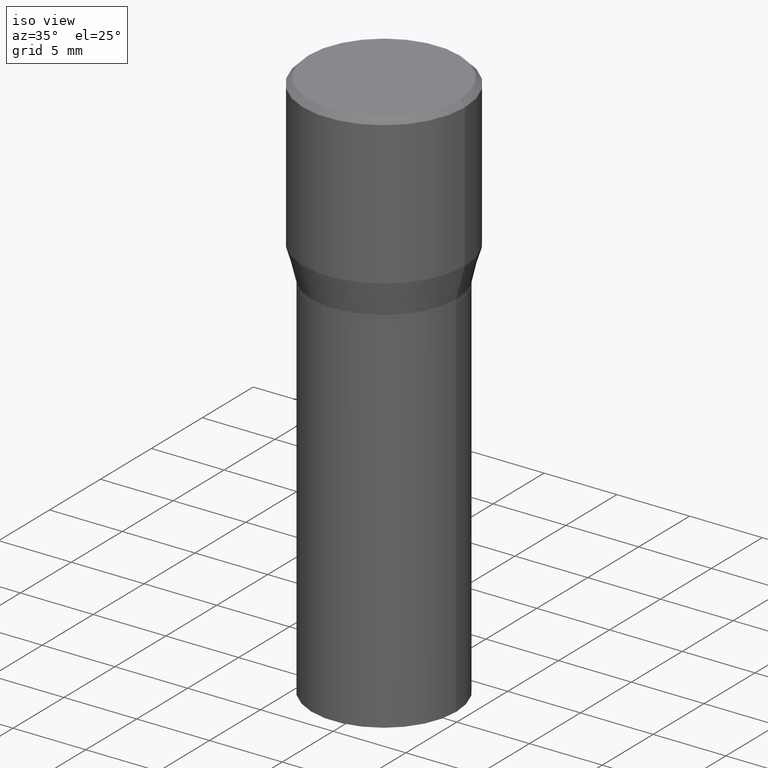
[diagram: clean part render]
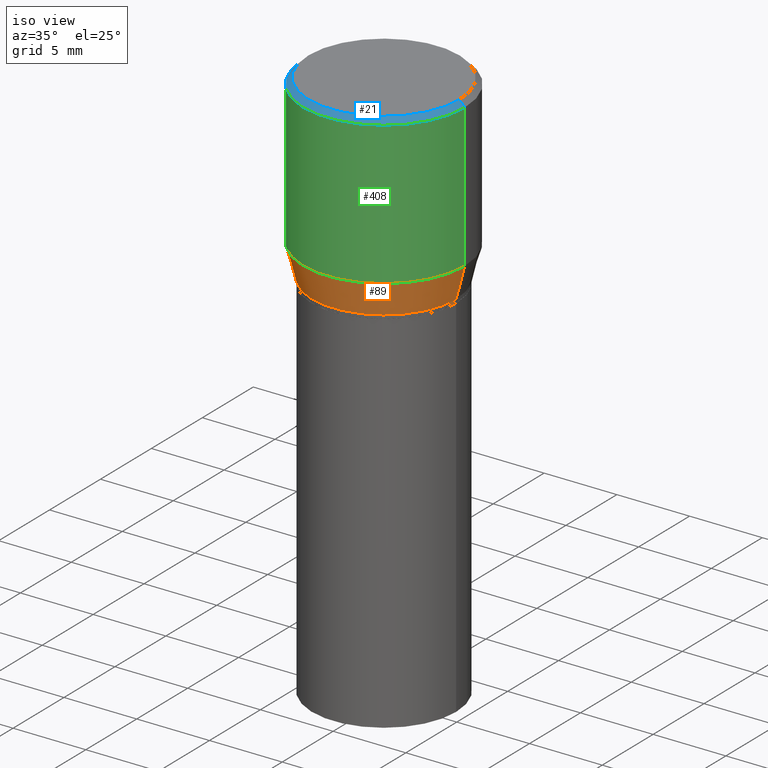
[diagram: same view with three faces highlighted in distinct colors, each labeled with its STEP entity id]
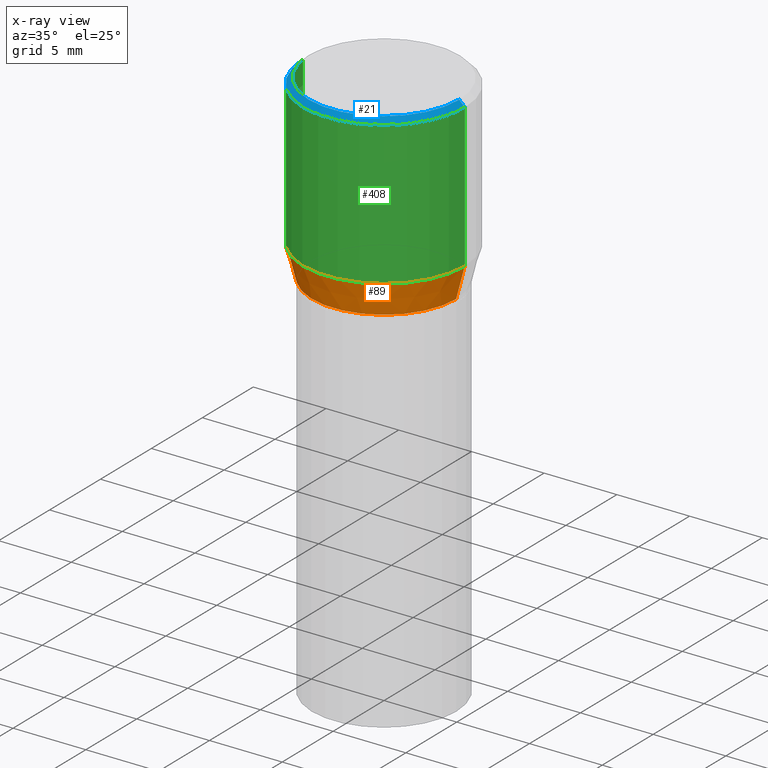
[diagram: x-ray of the same camera — body ghosted, the three highlighted faces saturated]
A machine part, iso view with three faces highlighted in distinct colors.
The next image is the same camera in x-ray (body ghosted, the three faces saturated) — at least one of them is partly hidden behind the body in this view.
Their STEP definitions:

[orange] entity #89 — the highlighted conical surface has half-angle 15 deg.
#8 = DIRECTION ( 'NONE',  ( 1.000000000000000000, -6.982962677686265922E-15, 0.000000000000000000 ) ) ;
#11 = CARTESIAN_POINT ( 'NONE',  ( -0.1952999999999999736, -3.231358930936662090E-16, -0.4900000000000001021 ) ) ;
#31 = ORIENTED_EDGE ( 'NONE', *, *, #311, .F. ) ;
#32 = VERTEX_POINT ( 'NONE', #465 ) ;
#38 = FACE_OUTER_BOUND ( 'NONE', #382, .T. ) ;
#39 = DIRECTION ( 'NONE',  ( 1.000000000000000000, -6.982962677686265922E-15, 0.000000000000000000 ) ) ;
#56 = DIRECTION ( 'NONE',  ( 1.000000000000000000, -6.982962677686266711E-15, 0.000000000000000000 ) ) ;
#64 = CIRCLE ( 'NONE', #79, 0.1952999999999999736 ) ;
#69 = AXIS2_PLACEMENT_3D ( 'NONE', #191, #404, #8 ) ;
#76 = VERTEX_POINT ( 'NONE', #367 ) ;
#79 = AXIS2_PLACEMENT_3D ( 'NONE', #251, #400, #39 ) ;
#83 = ORIENTED_EDGE ( 'NONE', *, *, #415, .F. ) ;
#89 = ADVANCED_FACE ( 'NONE', ( #38 ), #313, .T. ) ;
#110 = VECTOR ( 'NONE', #348, 39.37007874015747433 ) ;
#119 = VERTEX_POINT ( 'NONE', #383 ) ;
#165 = LINE ( 'NONE', #410, #205 ) ;
#166 = ORIENTED_EDGE ( 'NONE', *, *, #200, .T. ) ;
#173 = AXIS2_PLACEMENT_3D ( 'NONE', #334, #199, #56 ) ;
#191 = CARTESIAN_POINT ( 'NONE',  ( 1.198279715030717173E-29, -1.710825856033141537E-15, -0.4900000000000001021 ) ) ;
#199 = DIRECTION ( 'NONE',  ( -2.445468806185136597E-29, 3.491481338843145583E-15, 1.000000000000000000 ) ) ;
#200 = EDGE_CURVE ( 'NONE', #32, #119, #64, .T. ) ;
#205 = VECTOR ( 'NONE', #306, 39.37007874015747433 ) ;
#251 = CARTESIAN_POINT ( 'NONE',  ( 1.198279715030717173E-29, -1.710825856033141537E-15, -0.4900000000000001021 ) ) ;
#265 = LINE ( 'NONE', #11, #110 ) ;
#306 = DIRECTION ( 'NONE',  ( 0.2588190451025214611, 1.565188264969621573E-15, 0.9659258262890682012 ) ) ;
#311 = EDGE_CURVE ( 'NONE', #32, #76, #265, .T. ) ;
#313 = CONICAL_SURFACE ( 'NONE', #69, 0.1952999999999999736, 0.2617993877991501295 ) ;
#314 = CIRCLE ( 'NONE', #173, 0.2187500000000000000 ) ;
#334 = CARTESIAN_POINT ( 'NONE',  ( 9.842606206466859638E-30, -1.405263310189985589E-15, -0.4024834085625100810 ) ) ;
#348 = DIRECTION ( 'NONE',  ( -0.2588190451025214611, 5.211531920934551042E-15, 0.9659258262890682012 ) ) ;
#367 = CARTESIAN_POINT ( 'NONE',  ( -0.2187500000000000000, 1.490489242852337896E-16, -0.4024834085625100810 ) ) ;
#377 = EDGE_CURVE ( 'NONE', #119, #402, #165, .T. ) ;
#382 = EDGE_LOOP ( 'NONE', ( #31, #166, #434, #83 ) ) ;
#383 = CARTESIAN_POINT ( 'NONE',  ( 0.1952999999999999736, -3.074598466985269231E-15, -0.4900000000000001021 ) ) ;
#400 = DIRECTION ( 'NONE',  ( -2.445468806185136597E-29, 3.491481338843145583E-15, 1.000000000000000000 ) ) ;
#402 = VERTEX_POINT ( 'NONE', #409 ) ;
#404 = DIRECTION ( 'NONE',  ( -2.445468806185136597E-29, 3.491481338843145583E-15, 1.000000000000000000 ) ) ;
#409 = CARTESIAN_POINT ( 'NONE',  ( 0.2187500000000000000, -2.932786395933856235E-15, -0.4024834085625100810 ) ) ;
#410 = CARTESIAN_POINT ( 'NONE',  ( 0.1952999999999999736, -3.074598466985269231E-15, -0.4900000000000001021 ) ) ;
#415 = EDGE_CURVE ( 'NONE', #76, #402, #314, .T. ) ;
#434 = ORIENTED_EDGE ( 'NONE', *, *, #377, .T. ) ;
#465 = CARTESIAN_POINT ( 'NONE',  ( -0.1952999999999999736, -8.704348440421619739E-17, -0.4900000000000001021 ) ) ;

[blue] entity #21 — the highlighted conical surface has half-angle 45 deg.
#2 = DIRECTION ( 'NONE',  ( 1.000000000000000000, -6.982962677686266711E-15, 0.000000000000000000 ) ) ;
#5 = CARTESIAN_POINT ( 'NONE',  ( 3.668203209277705088E-31, -5.237222008264718399E-17, -0.01499999999999999944 ) ) ;
#18 = AXIS2_PLACEMENT_3D ( 'NONE', #5, #431, #2 ) ;
#21 = ADVANCED_FACE ( 'NONE', ( #328 ), #349, .T. ) ;
#28 = ORIENTED_EDGE ( 'NONE', *, *, #181, .T. ) ;
#70 = CIRCLE ( 'NONE', #131, 0.2037499999999999867 ) ;
#77 = DIRECTION ( 'NONE',  ( -0.7071067811865452413, 2.468850131082233000E-15, -0.7071067811865497932 ) ) ;
#82 = CARTESIAN_POINT ( 'NONE',  ( -0.2187500000000000000, 1.475150865661223567E-15, -0.01499999999999999944 ) ) ;
#88 = LINE ( 'NONE', #164, #267 ) ;
#95 = DIRECTION ( 'NONE',  ( 1.000000000000000000, -6.982962677686266711E-15, 4.875065411617369217E-29 ) ) ;
#116 = CARTESIAN_POINT ( 'NONE',  ( 3.668203209277705088E-31, -5.237222008264718399E-17, -0.01499999999999999944 ) ) ;
#131 = AXIS2_PLACEMENT_3D ( 'NONE', #376, #230, #95 ) ;
#145 = VERTEX_POINT ( 'NONE', #411 ) ;
#151 = DIRECTION ( 'NONE',  ( -1.000000000000000000, 6.982962677686266711E-15, 0.000000000000000000 ) ) ;
#157 = CARTESIAN_POINT ( 'NONE',  ( 0.2037499999999999867, -1.475466312070559275E-15, 1.060151966214670170E-16 ) ) ;
#164 = CARTESIAN_POINT ( 'NONE',  ( 0.2187500000000000000, -1.553106157095169608E-15, -0.01499999999999999944 ) ) ;
#181 = EDGE_CURVE ( 'NONE', #392, #145, #276, .T. ) ;
#207 = VERTEX_POINT ( 'NONE', #157 ) ;
#225 = EDGE_CURVE ( 'NONE', #145, #282, #338, .T. ) ;
#230 = DIRECTION ( 'NONE',  ( -2.445468806185136597E-29, 3.491481338843145583E-15, 1.000000000000000000 ) ) ;
#234 = CARTESIAN_POINT ( 'NONE',  ( -0.2037499999999999867, 1.448964755619900421E-15, 1.060151966214468518E-16 ) ) ;
#245 = ORIENTED_EDGE ( 'NONE', *, *, #397, .F. ) ;
#246 = ORIENTED_EDGE ( 'NONE', *, *, #342, .F. ) ;
#267 = VECTOR ( 'NONE', #449, 39.37007874015748143 ) ;
#276 = LINE ( 'NONE', #82, #414 ) ;
#282 = VERTEX_POINT ( 'NONE', #445 ) ;
#296 = DIRECTION ( 'NONE',  ( 2.445468806185136597E-29, -3.491481338843145583E-15, -1.000000000000000000 ) ) ;
#328 = FACE_OUTER_BOUND ( 'NONE', #359, .T. ) ;
#338 = CIRCLE ( 'NONE', #18, 0.2187500000000000000 ) ;
#342 = EDGE_CURVE ( 'NONE', #207, #282, #88, .T. ) ;
#349 = CONICAL_SURFACE ( 'NONE', #462, 0.2187500000000000000, 0.7853981633974450594 ) ;
#359 = EDGE_LOOP ( 'NONE', ( #246, #245, #28, #454 ) ) ;
#376 = CARTESIAN_POINT ( 'NONE',  ( -2.592568563193567003E-45, 3.701500806376036554E-31, 1.060151966214568974E-16 ) ) ;
#392 = VERTEX_POINT ( 'NONE', #234 ) ;
#397 = EDGE_CURVE ( 'NONE', #392, #207, #70, .T. ) ;
#411 = CARTESIAN_POINT ( 'NONE',  ( -0.2187500000000000000, 8.254944693389027239E-16, -0.01499999999999999944 ) ) ;
#414 = VECTOR ( 'NONE', #77, 39.37007874015748143 ) ;
#431 = DIRECTION ( 'NONE',  ( -2.445468806185136597E-29, 3.491481338843145583E-15, 1.000000000000000000 ) ) ;
#445 = CARTESIAN_POINT ( 'NONE',  ( 0.2187500000000000000, -1.579895305826517922E-15, -0.01499999999999999944 ) ) ;
#449 = DIRECTION ( 'NONE',  ( 0.7071067811865452413, -7.319954787623248157E-15, -0.7071067811865497932 ) ) ;
#454 = ORIENTED_EDGE ( 'NONE', *, *, #225, .T. ) ;
#462 = AXIS2_PLACEMENT_3D ( 'NONE', #116, #296, #151 ) ;

[green] entity #408 — the highlighted cylindrical surface (partial cylindrical patch) has radius 5.5562 mm, axis along (-0, 0, 1).
#2 = DIRECTION ( 'NONE',  ( 1.000000000000000000, -6.982962677686266711E-15, 0.000000000000000000 ) ) ;
#3 = VECTOR ( 'NONE', #344, 39.37007874015748143 ) ;
#5 = CARTESIAN_POINT ( 'NONE',  ( 3.668203209277705088E-31, -5.237222008264718399E-17, -0.01499999999999999944 ) ) ;
#18 = AXIS2_PLACEMENT_3D ( 'NONE', #5, #431, #2 ) ;
#30 = EDGE_CURVE ( 'NONE', #76, #145, #220, .T. ) ;
#56 = DIRECTION ( 'NONE',  ( 1.000000000000000000, -6.982962677686266711E-15, 0.000000000000000000 ) ) ;
#76 = VERTEX_POINT ( 'NONE', #367 ) ;
#92 = DIRECTION ( 'NONE',  ( 1.000000000000000000, -6.982962677686266711E-15, 4.876176775795935232E-29 ) ) ;
#139 = ORIENTED_EDGE ( 'NONE', *, *, #30, .F. ) ;
#145 = VERTEX_POINT ( 'NONE', #411 ) ;
#173 = AXIS2_PLACEMENT_3D ( 'NONE', #334, #199, #56 ) ;
#193 = CARTESIAN_POINT ( 'NONE',  ( 0.000000000000000000, 0.000000000000000000, 0.000000000000000000 ) ) ;
#197 = FACE_OUTER_BOUND ( 'NONE', #293, .T. ) ;
#199 = DIRECTION ( 'NONE',  ( -2.445468806185136597E-29, 3.491481338843145583E-15, 1.000000000000000000 ) ) ;
#216 = CARTESIAN_POINT ( 'NONE',  ( -0.2187500000000000000, 1.554312234475219157E-15, -1.076017050993260622E-29 ) ) ;
#220 = LINE ( 'NONE', #216, #419 ) ;
#225 = EDGE_CURVE ( 'NONE', #145, #282, #338, .T. ) ;
#227 = DIRECTION ( 'NONE',  ( -2.445468806185136597E-29, 3.491481338843145583E-15, 1.000000000000000000 ) ) ;
#243 = ORIENTED_EDGE ( 'NONE', *, *, #290, .T. ) ;
#282 = VERTEX_POINT ( 'NONE', #445 ) ;
#290 = EDGE_CURVE ( 'NONE', #402, #282, #310, .T. ) ;
#293 = EDGE_LOOP ( 'NONE', ( #139, #307, #243, #322 ) ) ;
#307 = ORIENTED_EDGE ( 'NONE', *, *, #415, .T. ) ;
#310 = LINE ( 'NONE', #337, #3 ) ;
#314 = CIRCLE ( 'NONE', #173, 0.2187500000000000000 ) ;
#322 = ORIENTED_EDGE ( 'NONE', *, *, #225, .F. ) ;
#334 = CARTESIAN_POINT ( 'NONE',  ( 9.842606206466859638E-30, -1.405263310189985589E-15, -0.4024834085625100810 ) ) ;
#337 = CARTESIAN_POINT ( 'NONE',  ( 0.2187500000000000000, -1.527523085743870843E-15, 1.066663669705360885E-29 ) ) ;
#338 = CIRCLE ( 'NONE', #18, 0.2187500000000000000 ) ;
#344 = DIRECTION ( 'NONE',  ( -2.445468806185136877E-29, 3.491481338843145188E-15, 1.000000000000000000 ) ) ;
#367 = CARTESIAN_POINT ( 'NONE',  ( -0.2187500000000000000, 1.490489242852337896E-16, -0.4024834085625100810 ) ) ;
#373 = AXIS2_PLACEMENT_3D ( 'NONE', #193, #227, #92 ) ;
#381 = CYLINDRICAL_SURFACE ( 'NONE', #373, 0.2187500000000000000 ) ;
#398 = DIRECTION ( 'NONE',  ( -2.445468806185136877E-29, 3.491481338843145188E-15, 1.000000000000000000 ) ) ;
#402 = VERTEX_POINT ( 'NONE', #409 ) ;
#408 = ADVANCED_FACE ( 'NONE', ( #197 ), #381, .T. ) ;
#409 = CARTESIAN_POINT ( 'NONE',  ( 0.2187500000000000000, -2.932786395933856235E-15, -0.4024834085625100810 ) ) ;
#411 = CARTESIAN_POINT ( 'NONE',  ( -0.2187500000000000000, 8.254944693389027239E-16, -0.01499999999999999944 ) ) ;
#415 = EDGE_CURVE ( 'NONE', #76, #402, #314, .T. ) ;
#419 = VECTOR ( 'NONE', #398, 39.37007874015748143 ) ;
#431 = DIRECTION ( 'NONE',  ( -2.445468806185136597E-29, 3.491481338843145583E-15, 1.000000000000000000 ) ) ;
#445 = CARTESIAN_POINT ( 'NONE',  ( 0.2187500000000000000, -1.579895305826517922E-15, -0.01499999999999999944 ) ) ;